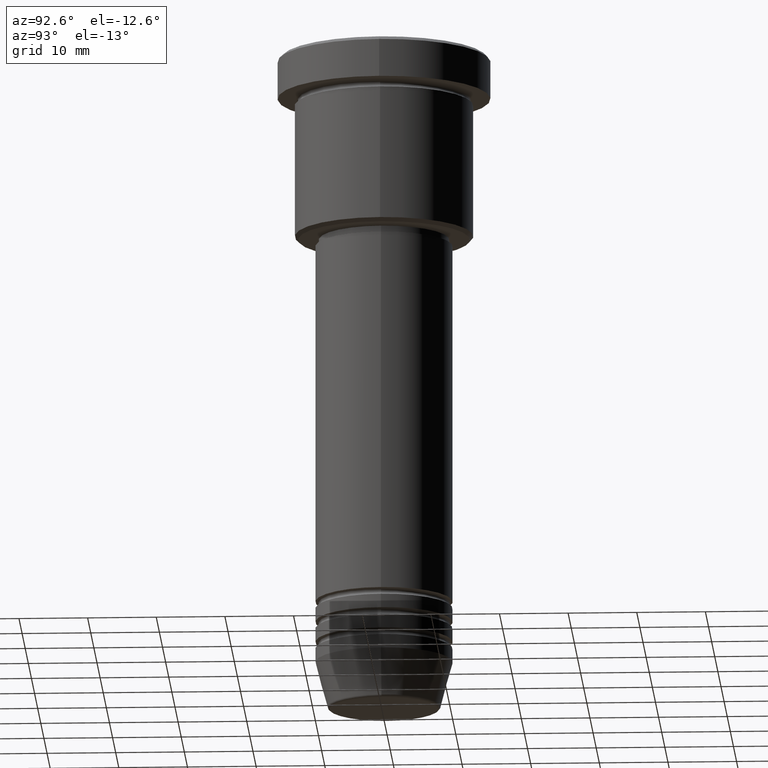
[diagram: clean part render]
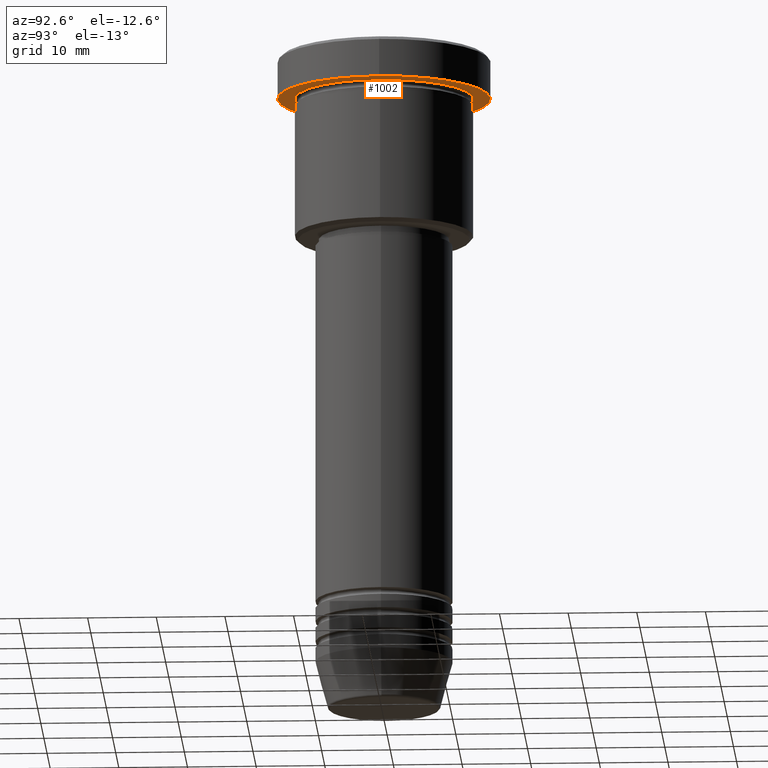
[diagram: same view with one face highlighted and labeled with its STEP entity id]
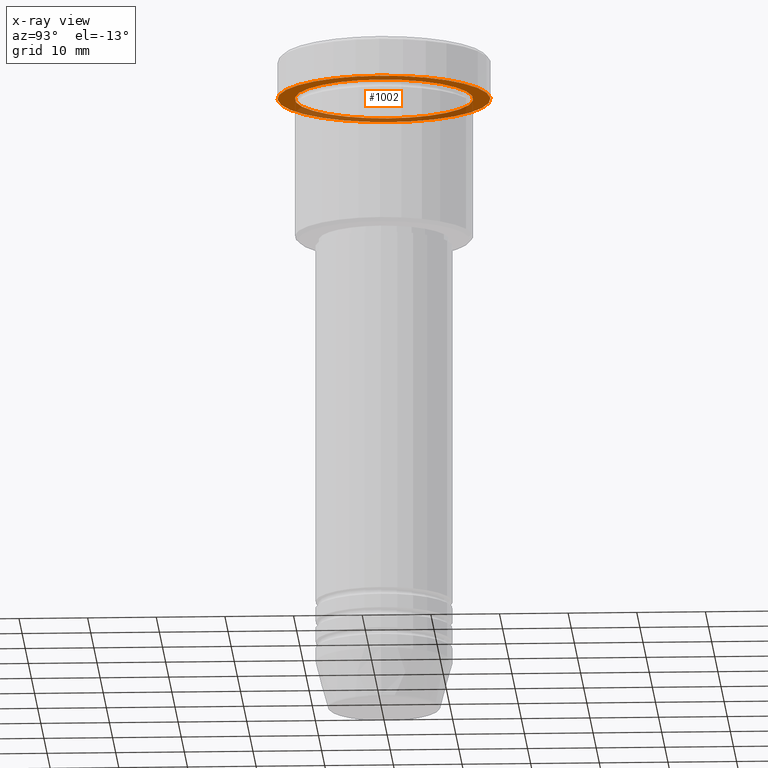
[diagram: x-ray of the same camera — body ghosted, the highlighted face saturated]
A machine part, auxiliary view. The second image highlights one B-rep face of the part: STEP entity #1002.
The next image is the same camera in x-ray: the body ghosted, the highlighted face saturated — about 34% of this face is hidden behind the body in this view.
In plain terms, the highlighted planar face has unit normal (0, 0, -1).
Its self-contained STEP definition (entity closure, byte-faithful):
#79 = CIRCLE ( 'NONE', #462, 13.00000000000000000 ) ;
#92 = DIRECTION ( 'NONE',  ( -0.000000000000000000, -0.000000000000000000, 1.000000000000000000 ) ) ;
#101 = CARTESIAN_POINT ( 'NONE',  ( 0.000000000000000000, 0.000000000000000000, -5.999999999999995559 ) ) ;
#118 = CIRCLE ( 'NONE', #1096, 13.00000000000000000 ) ;
#125 = CARTESIAN_POINT ( 'NONE',  ( 0.000000000000000000, 15.50000000000000000, -5.999999999999995559 ) ) ;
#209 = EDGE_CURVE ( 'NONE', #1035, #345, #118, .T. ) ;
#226 = VERTEX_POINT ( 'NONE', #281 ) ;
#228 = FACE_BOUND ( 'NONE', #323, .T. ) ;
#236 = CIRCLE ( 'NONE', #1169, 15.50000000000000000 ) ;
#281 = CARTESIAN_POINT ( 'NONE',  ( 15.50000000000000000, 0.000000000000000000, -5.999999999999995559 ) ) ;
#295 = DIRECTION ( 'NONE',  ( 1.000000000000000000, 0.000000000000000000, 0.000000000000000000 ) ) ;
#306 = CARTESIAN_POINT ( 'NONE',  ( 0.000000000000000000, 0.000000000000000000, -5.999999999999995559 ) ) ;
#323 = EDGE_LOOP ( 'NONE', ( #852, #607 ) ) ;
#345 = VERTEX_POINT ( 'NONE', #670 ) ;
#363 = DIRECTION ( 'NONE',  ( -0.000000000000000000, -0.000000000000000000, 1.000000000000000000 ) ) ;
#375 = CARTESIAN_POINT ( 'NONE',  ( -15.50000000000000000, 1.898202538678397557E-15, -5.999999999999995559 ) ) ;
#398 = EDGE_CURVE ( 'NONE', #521, #226, #236, .T. ) ;
#426 = ORIENTED_EDGE ( 'NONE', *, *, #398, .F. ) ;
#441 = AXIS2_PLACEMENT_3D ( 'NONE', #125, #1032, #662 ) ;
#455 = DIRECTION ( 'NONE',  ( 1.000000000000000000, 0.000000000000000000, 0.000000000000000000 ) ) ;
#462 = AXIS2_PLACEMENT_3D ( 'NONE', #101, #363, #1110 ) ;
#474 = CARTESIAN_POINT ( 'NONE',  ( 13.00000000000000000, 1.592040838891559095E-15, -5.999999999999994671 ) ) ;
#488 = EDGE_CURVE ( 'NONE', #345, #1035, #79, .T. ) ;
#521 = VERTEX_POINT ( 'NONE', #375 ) ;
#545 = CARTESIAN_POINT ( 'NONE',  ( 0.000000000000000000, 0.000000000000000000, -5.999999999999995559 ) ) ;
#553 = CARTESIAN_POINT ( 'NONE',  ( 0.000000000000000000, 0.000000000000000000, -5.999999999999995559 ) ) ;
#607 = ORIENTED_EDGE ( 'NONE', *, *, #209, .T. ) ;
#662 = DIRECTION ( 'NONE',  ( -1.000000000000000000, 0.000000000000000000, -0.000000000000000000 ) ) ;
#667 = FACE_OUTER_BOUND ( 'NONE', #928, .T. ) ;
#670 = CARTESIAN_POINT ( 'NONE',  ( -13.00000000000000000, 0.000000000000000000, -5.999999999999994671 ) ) ;
#734 = DIRECTION ( 'NONE',  ( -1.000000000000000000, 0.000000000000000000, 0.000000000000000000 ) ) ;
#827 = AXIS2_PLACEMENT_3D ( 'NONE', #553, #92, #455 ) ;
#849 = PLANE ( 'NONE',  #441 ) ;
#852 = ORIENTED_EDGE ( 'NONE', *, *, #488, .T. ) ;
#928 = EDGE_LOOP ( 'NONE', ( #1048, #426 ) ) ;
#966 = CIRCLE ( 'NONE', #827, 15.50000000000000000 ) ;
#981 = EDGE_CURVE ( 'NONE', #226, #521, #966, .T. ) ;
#1002 = ADVANCED_FACE ( 'NONE', ( #228, #667 ), #849, .T. ) ;
#1032 = DIRECTION ( 'NONE',  ( 0.000000000000000000, 0.000000000000000000, -1.000000000000000000 ) ) ;
#1035 = VERTEX_POINT ( 'NONE', #474 ) ;
#1048 = ORIENTED_EDGE ( 'NONE', *, *, #981, .F. ) ;
#1096 = AXIS2_PLACEMENT_3D ( 'NONE', #545, #1102, #734 ) ;
#1102 = DIRECTION ( 'NONE',  ( -0.000000000000000000, -0.000000000000000000, 1.000000000000000000 ) ) ;
#1110 = DIRECTION ( 'NONE',  ( -1.000000000000000000, 0.000000000000000000, 0.000000000000000000 ) ) ;
#1118 = DIRECTION ( 'NONE',  ( -0.000000000000000000, -0.000000000000000000, 1.000000000000000000 ) ) ;
#1169 = AXIS2_PLACEMENT_3D ( 'NONE', #306, #1118, #295 ) ;